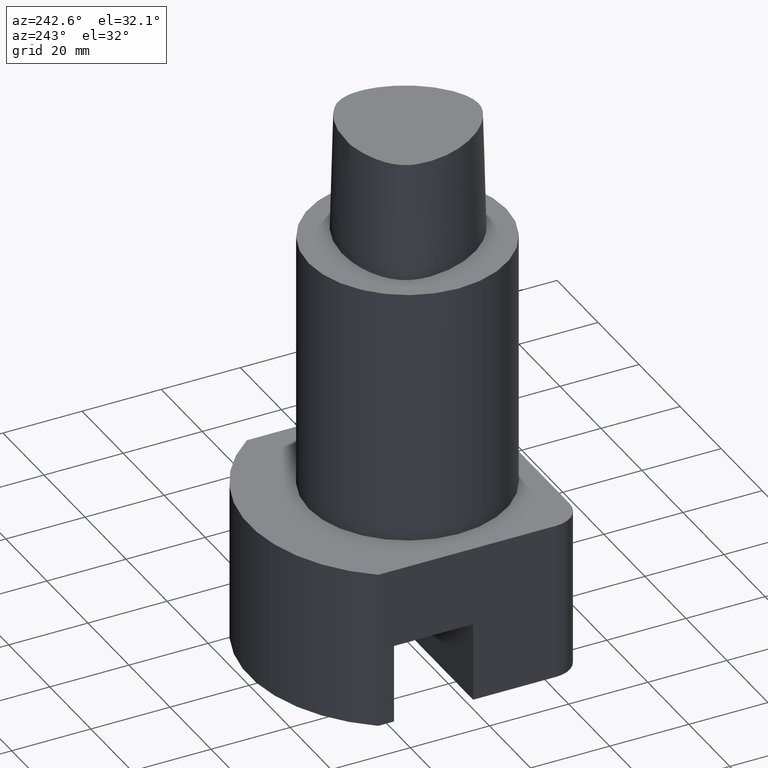
[diagram: clean part render]
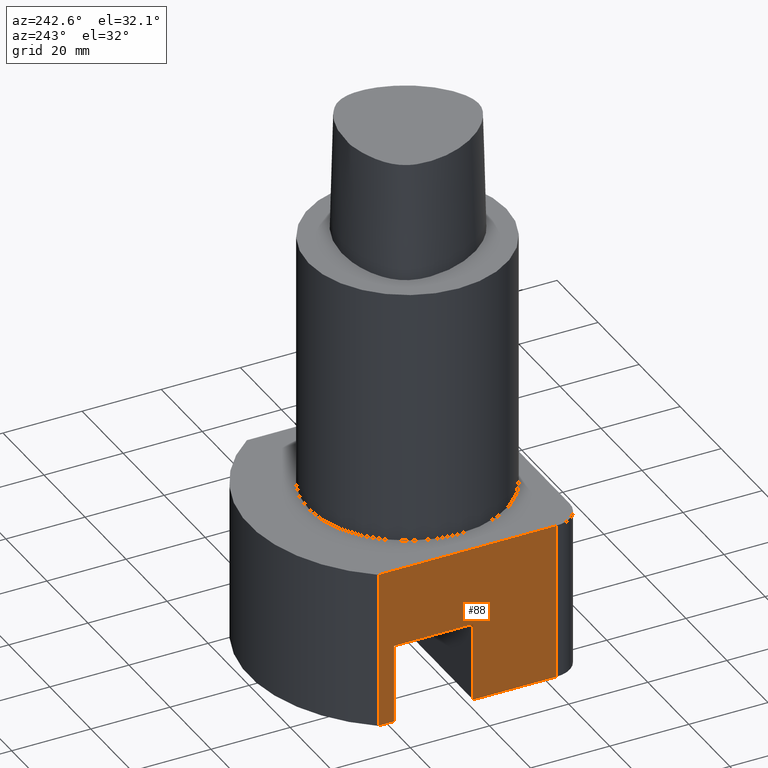
[diagram: same view with one face highlighted and labeled with its STEP entity id]
A machine part, auxiliary view. The second image highlights one B-rep face of the part: STEP entity #88.
In plain terms, the highlighted planar face has unit normal (-1, 0, -0).
Its self-contained STEP definition (entity closure, byte-faithful):
#88=ADVANCED_FACE('240[2]',(#232),#233,.T.);
#93=EDGE_CURVE('240[2]',#239,#214,#240,.T.);
#116=EDGE_CURVE('240[2]',#227,#275,#276,.T.);
#118=EDGE_CURVE('240[2]',#278,#239,#279,.T.);
#120=EDGE_CURVE('240[2]',#227,#243,#281,.T.);
#133=EDGE_CURVE('240[2]',#243,#285,#299,.T.);
#137=EDGE_CURVE('240[2]',#285,#268,#304,.T.);
#186=EDGE_CURVE('240[2]',#214,#275,#365,.T.);
#188=EDGE_CURVE('240[2]',#268,#278,#367,.T.);
#214=VERTEX_POINT('',#385);
#227=VERTEX_POINT('',#497);
#232=FACE_OUTER_BOUND('',#503,.T.);
#233=PLANE('',#504);
#239=VERTEX_POINT('',#512);
#240=LINE('',#513,#514);
#243=VERTEX_POINT('',#518);
#268=VERTEX_POINT('',#554);
#275=VERTEX_POINT('',#564);
#276=LINE('',#565,#566);
#278=VERTEX_POINT('',#569);
#279=LINE('',#570,#571);
#281=LINE('',#574,#575);
#285=VERTEX_POINT('',#582);
#299=LINE('',#603,#604);
#304=LINE('',#611,#612);
#365=LINE('',#1132,#1133);
#367=LINE('',#1136,#1137);
#385=CARTESIAN_POINT('',(-32.0,-21.0,-65.0));
#497=CARTESIAN_POINT('',(-32.0,24.0,-105.0));
#503=EDGE_LOOP('',(#1160,#1161,#1162,#1163,#1164,#1165,#1166,#1167));
#504=AXIS2_PLACEMENT_3D('',#1168,#1169,#1170);
#512=CARTESIAN_POINT('',(-32.0,-21.0,-105.0));
#513=CARTESIAN_POINT('',(-32.0,-21.0,-105.0));
#514=VECTOR('',#1176,1.0);
#518=CARTESIAN_POINT('',(-32.0,20.0,-105.0));
#554=CARTESIAN_POINT('',(-32.0,6.73555739531043E-016,-85.0));
#564=CARTESIAN_POINT('',(-32.0,24.0,-65.0));
#565=CARTESIAN_POINT('',(-32.0,24.0,-105.0));
#566=VECTOR('',#1212,1.0);
#569=CARTESIAN_POINT('',(-32.0,-5.51091059616309E-016,-105.0));
#570=CARTESIAN_POINT('',(-32.0,22.627417,-105.0));
#571=VECTOR('',#1213,1.0);
#574=CARTESIAN_POINT('',(-32.0,22.627417,-105.0));
#575=VECTOR('',#1214,1.0);
#582=CARTESIAN_POINT('',(-32.0,20.0,-85.0));
#603=CARTESIAN_POINT('',(-32.0,20.0,-136.5));
#604=VECTOR('',#1227,1.0);
#611=CARTESIAN_POINT('',(-32.0,5.40685425000002,-85.0));
#612=VECTOR('',#1231,1.0);
#1132=CARTESIAN_POINT('',(-32.0,22.627417,-64.9999999999999));
#1133=VECTOR('',#1315,1.0);
#1136=CARTESIAN_POINT('',(-32.0,-2.47990976827339E-015,-136.5));
#1137=VECTOR('',#1316,1.0);
#1160=ORIENTED_EDGE('',*,*,#188,.T.);
#1161=ORIENTED_EDGE('',*,*,#118,.T.);
#1162=ORIENTED_EDGE('',*,*,#93,.T.);
#1163=ORIENTED_EDGE('',*,*,#186,.T.);
#1164=ORIENTED_EDGE('',*,*,#116,.F.);
#1165=ORIENTED_EDGE('',*,*,#120,.T.);
#1166=ORIENTED_EDGE('',*,*,#133,.T.);
#1167=ORIENTED_EDGE('',*,*,#137,.T.);
#1168=CARTESIAN_POINT('',(-32.0,0.813708500000018,-105.0));
#1169=DIRECTION('',(-1.0,3.46563122112375E-016,-1.22464679914735E-016));
#1170=DIRECTION('',(-1.22464679914735E-016,0.0,1.0));
#1176=DIRECTION('',(-1.22464679914735E-016,6.12323399573677E-017,1.0));
#1212=DIRECTION('',(-1.22464679914735E-016,6.12323399573676E-017,1.0));
#1213=DIRECTION('',(-3.46563122112375E-016,-1.0,-5.90232069003722E-016));
#1214=DIRECTION('',(-3.46563122112375E-016,-1.0,-5.90232069003722E-016));
#1227=DIRECTION('',(-1.22464679914735E-016,6.12323399573677E-017,1.0));
#1231=DIRECTION('',(-3.46563122112375E-016,-1.0,6.12323399573676E-017));
#1315=DIRECTION('',(3.46563122112375E-016,1.0,5.90232069003722E-016));
#1316=DIRECTION('',(1.22464679914735E-016,-6.12323399573677E-017,-1.0));